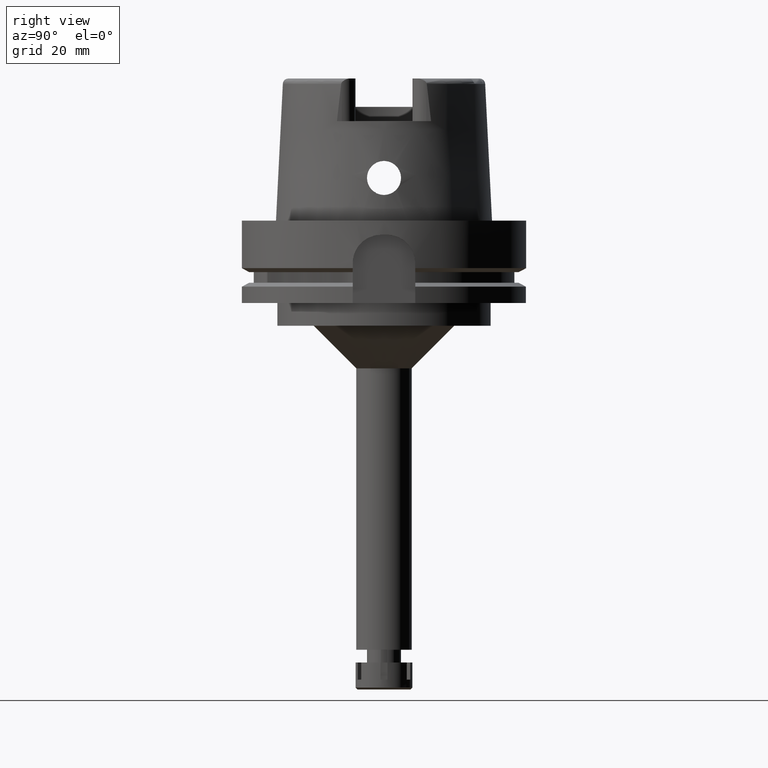
[diagram: clean part render]
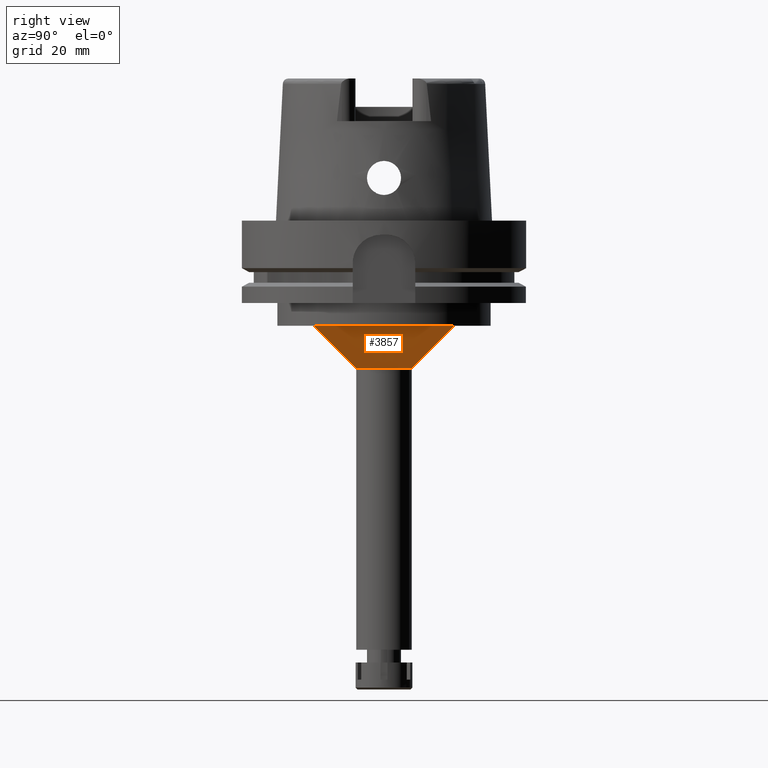
[diagram: same view with one face highlighted and labeled with its STEP entity id]
A machine part, right view. The second image highlights one B-rep face of the part: STEP entity #3857.
In plain terms, the highlighted conical surface has half-angle 45 deg.
Its self-contained STEP definition (entity closure, byte-faithful):
#390 = DIRECTION ( 'NONE',  ( 0.0000000000000000000, 1.000000000000000000, 0.0000000000000000000 ) ) ;
#411 = EDGE_LOOP ( 'NONE', ( #4674, #5735, #2419, #3325 ) ) ;
#419 = VERTEX_POINT ( 'NONE', #3513 ) ;
#432 = CARTESIAN_POINT ( 'NONE',  ( 0.0000000000000000000, -24.75000000000000000, -37.00000000000000000 ) ) ;
#690 = CARTESIAN_POINT ( 'NONE',  ( 0.0000000000000000000, 0.0000000000000000000, -52.00000000000000000 ) ) ;
#873 = DIRECTION ( 'NONE',  ( 0.0000000000000000000, 0.0000000000000000000, -1.000000000000000000 ) ) ;
#902 = CARTESIAN_POINT ( 'NONE',  ( 0.0000000000000000000, 24.75000000000000000, -37.00000000000000000 ) ) ;
#1111 = EDGE_CURVE ( 'NONE', #419, #4105, #4079, .T. ) ;
#1339 = CONICAL_SURFACE ( 'NONE', #4732, 17.25000000000000000, 0.7853981633972997312 ) ;
#1396 = CARTESIAN_POINT ( 'NONE',  ( 0.0000000000000000000, 0.0000000000000000000, -44.50000000000000000 ) ) ;
#1672 = DIRECTION ( 'NONE',  ( 0.0000000000000000000, 1.000000000000000000, 0.0000000000000000000 ) ) ;
#2045 = CARTESIAN_POINT ( 'NONE',  ( 0.0000000000000000000, 0.0000000000000000000, -37.00000000000000000 ) ) ;
#2145 = CARTESIAN_POINT ( 'NONE',  ( 0.0000000000000000000, 9.750000000000000000, -52.00000000000000000 ) ) ;
#2296 = VERTEX_POINT ( 'NONE', #2145 ) ;
#2308 = CARTESIAN_POINT ( 'NONE',  ( 0.0000000000000000000, 24.75000000000000000, -37.00000000000000000 ) ) ;
#2352 = DIRECTION ( 'NONE',  ( 0.0000000000000000000, 0.7071067811865474617, -0.7071067811865474617 ) ) ;
#2419 = ORIENTED_EDGE ( 'NONE', *, *, #2872, .F. ) ;
#2442 = VECTOR ( 'NONE', #4215, 1000.000000000000114 ) ;
#2872 = EDGE_CURVE ( 'NONE', #2296, #4105, #3139, .T. ) ;
#2876 = EDGE_CURVE ( 'NONE', #2885, #2296, #4685, .T. ) ;
#2885 = VERTEX_POINT ( 'NONE', #902 ) ;
#3139 = CIRCLE ( 'NONE', #3836, 9.750000000000000000 ) ;
#3176 = DIRECTION ( 'NONE',  ( 0.0000000000000000000, 0.0000000000000000000, 1.000000000000000000 ) ) ;
#3325 = ORIENTED_EDGE ( 'NONE', *, *, #2876, .F. ) ;
#3513 = CARTESIAN_POINT ( 'NONE',  ( 0.0000000000000000000, -24.75000000000000000, -37.00000000000000000 ) ) ;
#3763 = FACE_OUTER_BOUND ( 'NONE', #411, .T. ) ;
#3836 = AXIS2_PLACEMENT_3D ( 'NONE', #690, #873, #390 ) ;
#3857 = ADVANCED_FACE ( 'NONE', ( #3763 ), #1339, .T. ) ;
#3915 = CARTESIAN_POINT ( 'NONE',  ( 0.0000000000000000000, -9.750000000000000000, -52.00000000000000000 ) ) ;
#4079 = LINE ( 'NONE', #432, #4720 ) ;
#4105 = VERTEX_POINT ( 'NONE', #3915 ) ;
#4215 = DIRECTION ( 'NONE',  ( 0.0000000000000000000, -0.7071067811865474617, -0.7071067811865474617 ) ) ;
#4483 = DIRECTION ( 'NONE',  ( 0.0000000000000000000, 0.0000000000000000000, -1.000000000000000000 ) ) ;
#4506 = CIRCLE ( 'NONE', #4605, 24.75000000000000000 ) ;
#4605 = AXIS2_PLACEMENT_3D ( 'NONE', #2045, #4483, #1672 ) ;
#4674 = ORIENTED_EDGE ( 'NONE', *, *, #6102, .T. ) ;
#4685 = LINE ( 'NONE', #2308, #2442 ) ;
#4720 = VECTOR ( 'NONE', #2352, 1000.000000000000114 ) ;
#4732 = AXIS2_PLACEMENT_3D ( 'NONE', #1396, #3176, #6168 ) ;
#5735 = ORIENTED_EDGE ( 'NONE', *, *, #1111, .T. ) ;
#6102 = EDGE_CURVE ( 'NONE', #2885, #419, #4506, .T. ) ;
#6168 = DIRECTION ( 'NONE',  ( 0.0000000000000000000, 1.000000000000000000, 0.0000000000000000000 ) ) ;